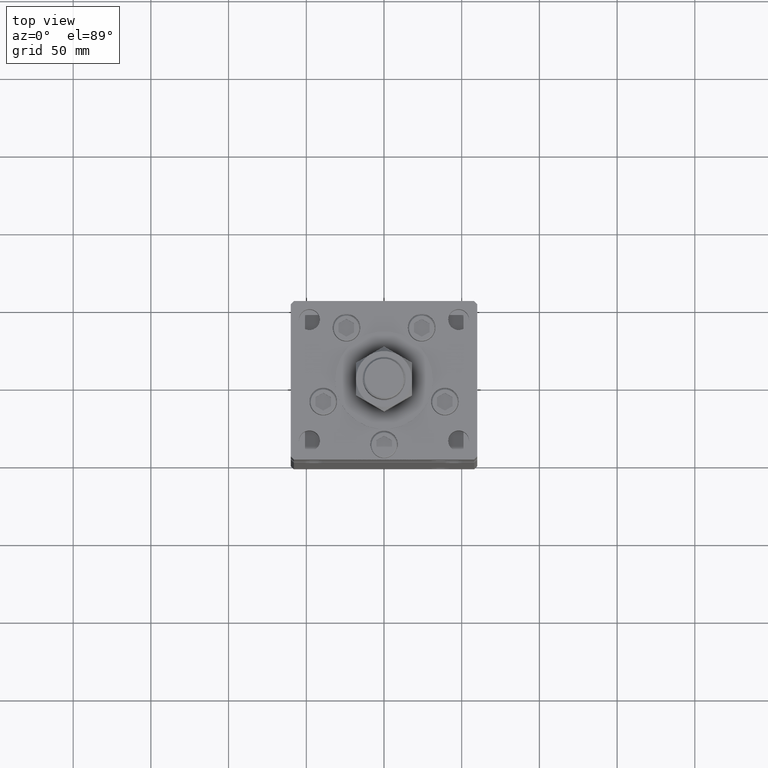
[diagram: clean part render]
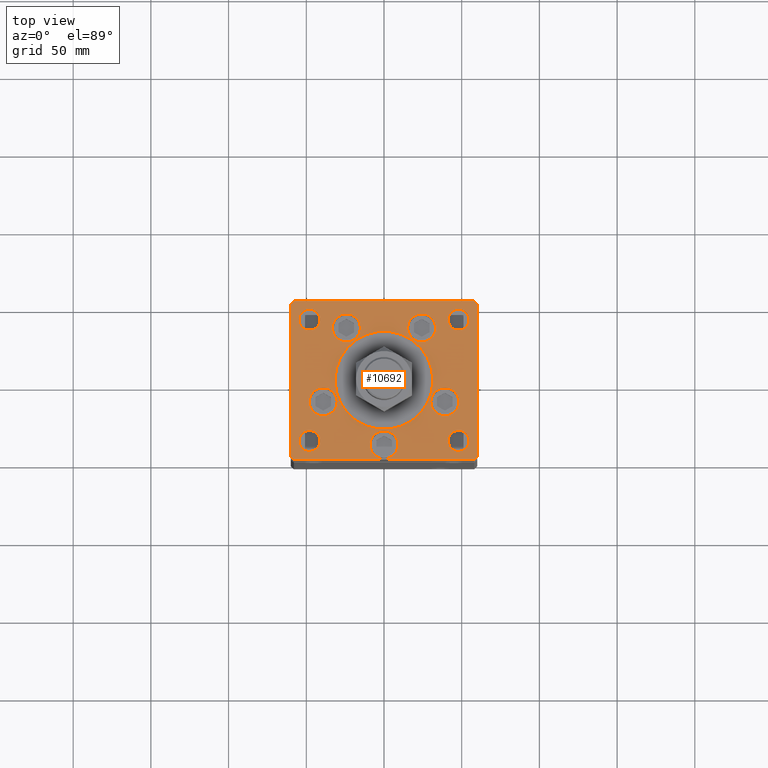
[diagram: same view with one face highlighted and labeled with its STEP entity id]
A machine part, top view. The second image highlights one B-rep face of the part: STEP entity #10692.
In plain terms, the highlighted planar face has unit normal (0, 0, 1).
Its self-contained STEP definition (entity closure, byte-faithful):
#168 = VERTEX_POINT ( 'NONE', #14459 ) ;
#234 = CIRCLE ( 'NONE', #51436, 6.749999999999999112 ) ;
#260 = LINE ( 'NONE', #42269, #46939 ) ;
#397 = EDGE_CURVE ( 'NONE', #27468, #168, #36267, .T. ) ;
#515 = AXIS2_PLACEMENT_3D ( 'NONE', #27396, #10797, #27676 ) ;
#1504 = ORIENTED_EDGE ( 'NONE', *, *, #21946, .F. ) ;
#1540 = CARTESIAN_POINT ( 'NONE',  ( 0.000000000000000000, -6.938893903907228378E-15, 0.000000000000000000 ) ) ;
#3448 = CARTESIAN_POINT ( 'NONE',  ( -9.000000000000000000, -41.50000000000000000, 0.000000000000000000 ) ) ;
#3501 = DIRECTION ( 'NONE',  ( 0.000000000000000000, 0.000000000000000000, 1.000000000000000000 ) ) ;
#3562 = CARTESIAN_POINT ( 'NONE',  ( -48.00000000000000000, 39.00000000000000711, 0.000000000000000000 ) ) ;
#3607 = CARTESIAN_POINT ( 'NONE',  ( 0.000000000000000000, -6.938893903907228378E-15, 0.000000000000000000 ) ) ;
#3973 = CARTESIAN_POINT ( 'NONE',  ( 60.00000000000001421, 49.00000000000002842, 0.000000000000000000 ) ) ;
#4388 = DIRECTION ( 'NONE',  ( 0.000000000000000000, -1.000000000000000000, 0.000000000000000000 ) ) ;
#4499 = VERTEX_POINT ( 'NONE', #46646 ) ;
#4670 = DIRECTION ( 'NONE',  ( 0.000000000000000000, 0.000000000000000000, 1.000000000000000000 ) ) ;
#4801 = VERTEX_POINT ( 'NONE', #11716 ) ;
#4926 = EDGE_CURVE ( 'NONE', #11864, #4499, #37296, .T. ) ;
#5583 = AXIS2_PLACEMENT_3D ( 'NONE', #50523, #16565, #16013 ) ;
#5655 = EDGE_LOOP ( 'NONE', ( #51501, #8653 ) ) ;
#5671 = ORIENTED_EDGE ( 'NONE', *, *, #40577, .T. ) ;
#5960 = EDGE_CURVE ( 'NONE', #13502, #4801, #30128, .T. ) ;
#6041 = EDGE_CURVE ( 'NONE', #4499, #11864, #40761, .T. ) ;
#6198 = DIRECTION ( 'NONE',  ( 0.000000000000000000, 0.000000000000000000, 1.000000000000000000 ) ) ;
#6336 = EDGE_CURVE ( 'NONE', #51343, #47669, #34570, .T. ) ;
#6450 = CARTESIAN_POINT ( 'NONE',  ( 41.25000000000000000, 39.00000000000000000, 0.000000000000000000 ) ) ;
#6668 = DIRECTION ( 'NONE',  ( 0.000000000000000000, 0.000000000000000000, 1.000000000000000000 ) ) ;
#6891 = PLANE ( 'NONE',  #41744 ) ;
#6905 = VERTEX_POINT ( 'NONE', #28674 ) ;
#6908 = EDGE_CURVE ( 'NONE', #29743, #15667, #21372, .T. ) ;
#7139 = DIRECTION ( 'NONE',  ( 0.7071067811865474617, -0.7071067811865474617, 0.000000000000000000 ) ) ;
#7162 = DIRECTION ( 'NONE',  ( 1.000000000000000000, 0.000000000000000000, 0.000000000000000000 ) ) ;
#7350 = VECTOR ( 'NONE', #7139, 1000.000000000000114 ) ;
#7973 = FACE_BOUND ( 'NONE', #53783, .T. ) ;
#8170 = CARTESIAN_POINT ( 'NONE',  ( 60.00000000000001421, 49.00000000000002842, 0.000000000000000000 ) ) ;
#8401 = CARTESIAN_POINT ( 'NONE',  ( 58.00000000000000000, 51.00000000000000711, 0.000000000000000000 ) ) ;
#8653 = ORIENTED_EDGE ( 'NONE', *, *, #34588, .F. ) ;
#8815 = CIRCLE ( 'NONE', #39689, 9.000000000000001776 ) ;
#8853 = DIRECTION ( 'NONE',  ( 0.000000000000000000, 0.000000000000000000, 1.000000000000000000 ) ) ;
#8962 = LINE ( 'NONE', #51229, #40830 ) ;
#9050 = VECTOR ( 'NONE', #4388, 1000.000000000000000 ) ;
#9291 = DIRECTION ( 'NONE',  ( 0.000000000000000000, 0.000000000000000000, 1.000000000000000000 ) ) ;
#9334 = DIRECTION ( 'NONE',  ( -1.000000000000000000, 0.000000000000000000, 0.000000000000000000 ) ) ;
#9557 = ORIENTED_EDGE ( 'NONE', *, *, #25502, .T. ) ;
#9602 = DIRECTION ( 'NONE',  ( -0.000000000000000000, -0.000000000000000000, -1.000000000000000000 ) ) ;
#9892 = EDGE_CURVE ( 'NONE', #32098, #27403, #47944, .T. ) ;
#9961 = DIRECTION ( 'NONE',  ( 1.000000000000000000, 0.000000000000000000, 0.000000000000000000 ) ) ;
#10692 = ADVANCED_FACE ( 'NONE', ( #36991, #7973, #23758, #15455, #44995, #11569, #49976, #24838, #15174, #53836, #32305 ), #6891, .T. ) ;
#10757 = DIRECTION ( 'NONE',  ( -0.000000000000000000, -0.000000000000000000, -1.000000000000000000 ) ) ;
#10797 = DIRECTION ( 'NONE',  ( 0.000000000000000000, 0.000000000000000000, 1.000000000000000000 ) ) ;
#10984 = CARTESIAN_POINT ( 'NONE',  ( 24.19288941894913592, 33.71874999999998579, 0.000000000000000000 ) ) ;
#11301 = DIRECTION ( 'NONE',  ( -0.000000000000000000, 0.000000000000000000, 1.000000000000000000 ) ) ;
#11445 = EDGE_LOOP ( 'NONE', ( #41956, #29999 ) ) ;
#11551 = CARTESIAN_POINT ( 'NONE',  ( -60.00000000000000000, 49.00000000000000000, 0.000000000000000000 ) ) ;
#11569 = FACE_BOUND ( 'NONE', #11445, .T. ) ;
#11716 = CARTESIAN_POINT ( 'NONE',  ( -15.19288941894913592, 33.71874999999998579, 0.000000000000000000 ) ) ;
#11864 = VERTEX_POINT ( 'NONE', #54350 ) ;
#12000 = ORIENTED_EDGE ( 'NONE', *, *, #43198, .F. ) ;
#12267 = ORIENTED_EDGE ( 'NONE', *, *, #43638, .T. ) ;
#12344 = VERTEX_POINT ( 'NONE', #6450 ) ;
#12523 = ORIENTED_EDGE ( 'NONE', *, *, #397, .F. ) ;
#12536 = CARTESIAN_POINT ( 'NONE',  ( 54.75000000000000000, 39.00000000000000000, 0.000000000000000000 ) ) ;
#12682 = DIRECTION ( 'NONE',  ( 1.000000000000000000, 0.000000000000000000, 0.000000000000000000 ) ) ;
#12728 = ORIENTED_EDGE ( 'NONE', *, *, #36658, .T. ) ;
#12737 = CARTESIAN_POINT ( 'NONE',  ( -48.12657522565563539, -13.83333333333332682, 0.000000000000000000 ) ) ;
#12931 = AXIS2_PLACEMENT_3D ( 'NONE', #3607, #6668, #20747 ) ;
#13019 = CARTESIAN_POINT ( 'NONE',  ( -58.00000000000000711, -51.00000000000002842, 0.000000000000000000 ) ) ;
#13053 = DIRECTION ( 'NONE',  ( 1.000000000000000000, 0.000000000000000000, 0.000000000000000000 ) ) ;
#13160 = ORIENTED_EDGE ( 'NONE', *, *, #18560, .F. ) ;
#13350 = CIRCLE ( 'NONE', #50379, 6.749999999999999112 ) ;
#13502 = VERTEX_POINT ( 'NONE', #33212 ) ;
#13516 = EDGE_CURVE ( 'NONE', #168, #27468, #15410, .T. ) ;
#13598 = CARTESIAN_POINT ( 'NONE',  ( -24.19288941894913592, 33.71874999999998579, 0.000000000000000000 ) ) ;
#13869 = DIRECTION ( 'NONE',  ( 1.000000000000000000, 0.000000000000000000, 0.000000000000000000 ) ) ;
#14314 = EDGE_LOOP ( 'NONE', ( #14795, #33128 ) ) ;
#14390 = EDGE_CURVE ( 'NONE', #18044, #43060, #46284, .T. ) ;
#14459 = CARTESIAN_POINT ( 'NONE',  ( 48.12657522565563539, -13.83333333333332860, 0.000000000000000000 ) ) ;
#14795 = ORIENTED_EDGE ( 'NONE', *, *, #35838, .T. ) ;
#15174 = FACE_BOUND ( 'NONE', #52767, .T. ) ;
#15309 = VERTEX_POINT ( 'NONE', #19722 ) ;
#15410 = CIRCLE ( 'NONE', #45405, 9.000000000000001776 ) ;
#15455 = FACE_BOUND ( 'NONE', #53640, .T. ) ;
#15610 = VERTEX_POINT ( 'NONE', #41651 ) ;
#15667 = VERTEX_POINT ( 'NONE', #25098 ) ;
#15734 = CARTESIAN_POINT ( 'NONE',  ( 0.000000000000000000, 0.000000000000000000, 0.000000000000000000 ) ) ;
#15786 = ORIENTED_EDGE ( 'NONE', *, *, #14390, .T. ) ;
#16013 = DIRECTION ( 'NONE',  ( 1.000000000000000000, 0.000000000000000000, 0.000000000000000000 ) ) ;
#16077 = EDGE_CURVE ( 'NONE', #54447, #12344, #47270, .T. ) ;
#16115 = CARTESIAN_POINT ( 'NONE',  ( -41.25000000000000000, 39.00000000000000711, 0.000000000000000000 ) ) ;
#16366 = VERTEX_POINT ( 'NONE', #37838 ) ;
#16454 = DIRECTION ( 'NONE',  ( 0.000000000000000000, 0.000000000000000000, 1.000000000000000000 ) ) ;
#16565 = DIRECTION ( 'NONE',  ( 0.000000000000000000, 0.000000000000000000, 1.000000000000000000 ) ) ;
#16732 = CARTESIAN_POINT ( 'NONE',  ( 33.19288941894913592, 33.71874999999998579, 0.000000000000000000 ) ) ;
#16835 = LINE ( 'NONE', #46658, #9050 ) ;
#17460 = DIRECTION ( 'NONE',  ( -0.000000000000000000, -0.000000000000000000, -1.000000000000000000 ) ) ;
#17531 = ORIENTED_EDGE ( 'NONE', *, *, #52860, .F. ) ;
#17721 = CARTESIAN_POINT ( 'NONE',  ( 48.00000000000000000, -39.00000000000001421, 0.000000000000000000 ) ) ;
#18044 = VERTEX_POINT ( 'NONE', #24696 ) ;
#18243 = VECTOR ( 'NONE', #46827, 1000.000000000000000 ) ;
#18560 = EDGE_CURVE ( 'NONE', #47669, #51343, #36745, .T. ) ;
#19203 = VECTOR ( 'NONE', #37981, 1000.000000000000000 ) ;
#19722 = CARTESIAN_POINT ( 'NONE',  ( -54.75000000000000000, 39.00000000000000711, 0.000000000000000000 ) ) ;
#19850 = DIRECTION ( 'NONE',  ( 1.000000000000000000, 0.000000000000000000, 0.000000000000000000 ) ) ;
#20736 = DIRECTION ( 'NONE',  ( -0.7071067811865536790, -0.7071067811865414665, 0.000000000000000000 ) ) ;
#20747 = DIRECTION ( 'NONE',  ( 1.000000000000000000, 0.000000000000000000, 0.000000000000000000 ) ) ;
#21372 = CIRCLE ( 'NONE', #30160, 9.000000000000001776 ) ;
#21651 = VERTEX_POINT ( 'NONE', #45109 ) ;
#21661 = CARTESIAN_POINT ( 'NONE',  ( 24.19288941894913592, 33.71874999999998579, 0.000000000000000000 ) ) ;
#21946 = EDGE_CURVE ( 'NONE', #27403, #32098, #37555, .T. ) ;
#22466 = ORIENTED_EDGE ( 'NONE', *, *, #4926, .F. ) ;
#22479 = AXIS2_PLACEMENT_3D ( 'NONE', #41704, #25145, #50271 ) ;
#22703 = CIRCLE ( 'NONE', #53573, 9.000000000000001776 ) ;
#23103 = AXIS2_PLACEMENT_3D ( 'NONE', #42520, #4670, #12682 ) ;
#23727 = DIRECTION ( 'NONE',  ( 0.000000000000000000, 0.000000000000000000, 1.000000000000000000 ) ) ;
#23758 = FACE_BOUND ( 'NONE', #30356, .T. ) ;
#23845 = VERTEX_POINT ( 'NONE', #3973 ) ;
#24092 = EDGE_LOOP ( 'NONE', ( #27500, #31885, #12267, #9557, #39114, #44343, #5671, #42707 ) ) ;
#24336 = AXIS2_PLACEMENT_3D ( 'NONE', #46737, #29079, #13053 ) ;
#24696 = CARTESIAN_POINT ( 'NONE',  ( 41.25000000000000000, -39.00000000000001421, 0.000000000000000000 ) ) ;
#24758 = LINE ( 'NONE', #8170, #18243 ) ;
#24838 = FACE_BOUND ( 'NONE', #5655, .T. ) ;
#24911 = VERTEX_POINT ( 'NONE', #16115 ) ;
#24990 = CARTESIAN_POINT ( 'NONE',  ( -48.00000000000000000, -39.00000000000001421, 0.000000000000000000 ) ) ;
#25031 = LINE ( 'NONE', #38537, #19203 ) ;
#25098 = CARTESIAN_POINT ( 'NONE',  ( 15.19288941894913236, 33.71874999999998579, 0.000000000000000000 ) ) ;
#25145 = DIRECTION ( 'NONE',  ( -0.000000000000000000, -0.000000000000000000, -1.000000000000000000 ) ) ;
#25502 = EDGE_CURVE ( 'NONE', #30271, #23845, #25031, .T. ) ;
#25614 = ORIENTED_EDGE ( 'NONE', *, *, #13516, .F. ) ;
#25719 = CARTESIAN_POINT ( 'NONE',  ( -39.12657522565563539, -13.83333333333332860, 0.000000000000000000 ) ) ;
#25750 = CARTESIAN_POINT ( 'NONE',  ( 39.12657522565563539, -13.83333333333332860, 0.000000000000000000 ) ) ;
#27396 = CARTESIAN_POINT ( 'NONE',  ( 0.000000000000000000, -41.50000000000000000, 0.000000000000000000 ) ) ;
#27403 = VERTEX_POINT ( 'NONE', #3448 ) ;
#27468 = VERTEX_POINT ( 'NONE', #41022 ) ;
#27500 = ORIENTED_EDGE ( 'NONE', *, *, #44134, .T. ) ;
#27550 = CIRCLE ( 'NONE', #39016, 6.749999999999999112 ) ;
#27676 = DIRECTION ( 'NONE',  ( 1.000000000000000000, 0.000000000000000000, 0.000000000000000000 ) ) ;
#28036 = CARTESIAN_POINT ( 'NONE',  ( 54.75000000000000000, -39.00000000000001421, 0.000000000000000000 ) ) ;
#28651 = CARTESIAN_POINT ( 'NONE',  ( -39.12657522565563539, -13.83333333333332860, 0.000000000000000000 ) ) ;
#28674 = CARTESIAN_POINT ( 'NONE',  ( -60.00000000000000000, -49.00000000000004263, 0.000000000000000000 ) ) ;
#29071 = DIRECTION ( 'NONE',  ( 1.000000000000000000, 0.000000000000000000, 0.000000000000000000 ) ) ;
#29079 = DIRECTION ( 'NONE',  ( 0.000000000000000000, 0.000000000000000000, 1.000000000000000000 ) ) ;
#29191 = VERTEX_POINT ( 'NONE', #11551 ) ;
#29402 = ORIENTED_EDGE ( 'NONE', *, *, #6041, .F. ) ;
#29743 = VERTEX_POINT ( 'NONE', #16732 ) ;
#29894 = DIRECTION ( 'NONE',  ( 1.000000000000000000, 0.000000000000000000, 0.000000000000000000 ) ) ;
#29999 = ORIENTED_EDGE ( 'NONE', *, *, #30547, .F. ) ;
#30128 = CIRCLE ( 'NONE', #31887, 9.000000000000000000 ) ;
#30160 = AXIS2_PLACEMENT_3D ( 'NONE', #10984, #23727, #19850 ) ;
#30239 = DIRECTION ( 'NONE',  ( 0.7071067811865474617, 0.7071067811865474617, 0.000000000000000000 ) ) ;
#30271 = VERTEX_POINT ( 'NONE', #44507 ) ;
#30356 = EDGE_LOOP ( 'NONE', ( #41593, #12000 ) ) ;
#30547 = EDGE_CURVE ( 'NONE', #31350, #43712, #8815, .T. ) ;
#30887 = VERTEX_POINT ( 'NONE', #51798 ) ;
#31350 = VERTEX_POINT ( 'NONE', #12737 ) ;
#31473 = EDGE_CURVE ( 'NONE', #21651, #15610, #51668, .T. ) ;
#31885 = ORIENTED_EDGE ( 'NONE', *, *, #31473, .T. ) ;
#31887 = AXIS2_PLACEMENT_3D ( 'NONE', #35114, #51686, #9961 ) ;
#32037 = AXIS2_PLACEMENT_3D ( 'NONE', #21661, #51197, #47048 ) ;
#32042 = DIRECTION ( 'NONE',  ( -1.000000000000000000, 0.000000000000000000, 0.000000000000000000 ) ) ;
#32098 = VERTEX_POINT ( 'NONE', #53644 ) ;
#32305 = FACE_BOUND ( 'NONE', #44191, .T. ) ;
#32763 = AXIS2_PLACEMENT_3D ( 'NONE', #46189, #41772, #29894 ) ;
#32881 = AXIS2_PLACEMENT_3D ( 'NONE', #24990, #33528, #37404 ) ;
#33128 = ORIENTED_EDGE ( 'NONE', *, *, #42717, .T. ) ;
#33212 = CARTESIAN_POINT ( 'NONE',  ( -33.19288941894913592, 33.71874999999998579, 0.000000000000000000 ) ) ;
#33528 = DIRECTION ( 'NONE',  ( 0.000000000000000000, 0.000000000000000000, 1.000000000000000000 ) ) ;
#33630 = CARTESIAN_POINT ( 'NONE',  ( -60.00000000000000000, -49.00000000000004263, 0.000000000000000000 ) ) ;
#33769 = CIRCLE ( 'NONE', #32037, 9.000000000000001776 ) ;
#34564 = AXIS2_PLACEMENT_3D ( 'NONE', #3562, #10757, #32042 ) ;
#34570 = CIRCLE ( 'NONE', #44258, 31.50000000000000000 ) ;
#34588 = EDGE_CURVE ( 'NONE', #12344, #54447, #13350, .T. ) ;
#35114 = CARTESIAN_POINT ( 'NONE',  ( -24.19288941894913592, 33.71874999999998579, 0.000000000000000000 ) ) ;
#35116 = EDGE_LOOP ( 'NONE', ( #47392, #1504 ) ) ;
#35838 = EDGE_CURVE ( 'NONE', #24911, #15309, #52189, .T. ) ;
#36267 = CIRCLE ( 'NONE', #32763, 9.000000000000001776 ) ;
#36658 = EDGE_CURVE ( 'NONE', #43060, #18044, #27550, .T. ) ;
#36665 = DIRECTION ( 'NONE',  ( 1.000000000000000000, 0.000000000000000000, 0.000000000000000000 ) ) ;
#36745 = CIRCLE ( 'NONE', #12931, 31.50000000000000000 ) ;
#36859 = CARTESIAN_POINT ( 'NONE',  ( 48.00000000000000000, 39.00000000000000000, 0.000000000000000000 ) ) ;
#36991 = FACE_BOUND ( 'NONE', #49771, .T. ) ;
#37296 = CIRCLE ( 'NONE', #32881, 6.749999999999999112 ) ;
#37404 = DIRECTION ( 'NONE',  ( 1.000000000000000000, 0.000000000000000000, 0.000000000000000000 ) ) ;
#37555 = CIRCLE ( 'NONE', #515, 9.000000000000000000 ) ;
#37838 = CARTESIAN_POINT ( 'NONE',  ( 58.00000000000000000, 51.00000000000000711, 0.000000000000000000 ) ) ;
#37981 = DIRECTION ( 'NONE',  ( 0.000000000000000000, 1.000000000000000000, 0.000000000000000000 ) ) ;
#38419 = DIRECTION ( 'NONE',  ( 1.000000000000000000, 9.570888143320313916E-16, 0.000000000000000000 ) ) ;
#38537 = CARTESIAN_POINT ( 'NONE',  ( 60.00000000000001421, -48.99999999999992895, 0.000000000000000000 ) ) ;
#38657 = EDGE_CURVE ( 'NONE', #29191, #6905, #16835, .T. ) ;
#38862 = CARTESIAN_POINT ( 'NONE',  ( 31.50000000000000000, -3.081256486593065689E-15, 0.000000000000000000 ) ) ;
#39016 = AXIS2_PLACEMENT_3D ( 'NONE', #17721, #17460, #46995 ) ;
#39114 = ORIENTED_EDGE ( 'NONE', *, *, #53623, .T. ) ;
#39689 = AXIS2_PLACEMENT_3D ( 'NONE', #25719, #8853, #46969 ) ;
#40577 = EDGE_CURVE ( 'NONE', #30887, #29191, #260, .T. ) ;
#40761 = CIRCLE ( 'NONE', #23103, 6.749999999999999112 ) ;
#40830 = VECTOR ( 'NONE', #30239, 1000.000000000000114 ) ;
#41022 = CARTESIAN_POINT ( 'NONE',  ( 30.12657522565563539, -13.83333333333332682, 0.000000000000000000 ) ) ;
#41593 = ORIENTED_EDGE ( 'NONE', *, *, #6908, .F. ) ;
#41651 = CARTESIAN_POINT ( 'NONE',  ( 58.00000000000001421, -50.99999999999992184, 0.000000000000000000 ) ) ;
#41704 = CARTESIAN_POINT ( 'NONE',  ( 48.00000000000000000, -39.00000000000001421, 0.000000000000000000 ) ) ;
#41744 = AXIS2_PLACEMENT_3D ( 'NONE', #15734, #11301, #7162 ) ;
#41772 = DIRECTION ( 'NONE',  ( 0.000000000000000000, 0.000000000000000000, 1.000000000000000000 ) ) ;
#41921 = LINE ( 'NONE', #33630, #7350 ) ;
#41956 = ORIENTED_EDGE ( 'NONE', *, *, #54177, .F. ) ;
#42012 = CARTESIAN_POINT ( 'NONE',  ( -31.50000000000000000, -6.938893903907228378E-15, 0.000000000000000000 ) ) ;
#42269 = CARTESIAN_POINT ( 'NONE',  ( -57.99999999999998579, 50.99999999999997868, 0.000000000000000000 ) ) ;
#42314 = DIRECTION ( 'NONE',  ( 0.000000000000000000, 0.000000000000000000, 1.000000000000000000 ) ) ;
#42375 = DIRECTION ( 'NONE',  ( -1.000000000000000000, -2.392722035830078972E-16, 0.000000000000000000 ) ) ;
#42520 = CARTESIAN_POINT ( 'NONE',  ( -48.00000000000000000, -39.00000000000001421, 0.000000000000000000 ) ) ;
#42707 = ORIENTED_EDGE ( 'NONE', *, *, #38657, .T. ) ;
#42717 = EDGE_CURVE ( 'NONE', #15309, #24911, #234, .T. ) ;
#43060 = VERTEX_POINT ( 'NONE', #28036 ) ;
#43198 = EDGE_CURVE ( 'NONE', #15667, #29743, #33769, .T. ) ;
#43307 = CARTESIAN_POINT ( 'NONE',  ( -48.00000000000000000, 39.00000000000000711, 0.000000000000000000 ) ) ;
#43546 = VECTOR ( 'NONE', #42375, 1000.000000000000000 ) ;
#43638 = EDGE_CURVE ( 'NONE', #15610, #30271, #8962, .T. ) ;
#43712 = VERTEX_POINT ( 'NONE', #44562 ) ;
#44134 = EDGE_CURVE ( 'NONE', #6905, #21651, #41921, .T. ) ;
#44191 = EDGE_LOOP ( 'NONE', ( #12728, #15786 ) ) ;
#44258 = AXIS2_PLACEMENT_3D ( 'NONE', #1540, #9291, #51281 ) ;
#44343 = ORIENTED_EDGE ( 'NONE', *, *, #45862, .T. ) ;
#44507 = CARTESIAN_POINT ( 'NONE',  ( 60.00000000000001421, -48.99999999999992895, 0.000000000000000000 ) ) ;
#44562 = CARTESIAN_POINT ( 'NONE',  ( -30.12657522565563539, -13.83333333333332860, 0.000000000000000000 ) ) ;
#44995 = FACE_BOUND ( 'NONE', #35116, .T. ) ;
#45109 = CARTESIAN_POINT ( 'NONE',  ( -58.00000000000000711, -51.00000000000002842, 0.000000000000000000 ) ) ;
#45405 = AXIS2_PLACEMENT_3D ( 'NONE', #25750, #42314, #29071 ) ;
#45862 = EDGE_CURVE ( 'NONE', #16366, #30887, #46787, .T. ) ;
#46189 = CARTESIAN_POINT ( 'NONE',  ( 39.12657522565563539, -13.83333333333332860, 0.000000000000000000 ) ) ;
#46284 = CIRCLE ( 'NONE', #22479, 6.749999999999999112 ) ;
#46646 = CARTESIAN_POINT ( 'NONE',  ( -41.25000000000000000, -39.00000000000001421, 0.000000000000000000 ) ) ;
#46658 = CARTESIAN_POINT ( 'NONE',  ( -60.00000000000000000, 49.00000000000000000, 0.000000000000000000 ) ) ;
#46737 = CARTESIAN_POINT ( 'NONE',  ( 48.00000000000000000, 39.00000000000000000, 0.000000000000000000 ) ) ;
#46787 = LINE ( 'NONE', #8401, #43546 ) ;
#46827 = DIRECTION ( 'NONE',  ( -0.7071067811865536790, 0.7071067811865414665, 0.000000000000000000 ) ) ;
#46939 = VECTOR ( 'NONE', #20736, 1000.000000000000000 ) ;
#46969 = DIRECTION ( 'NONE',  ( 1.000000000000000000, 0.000000000000000000, 0.000000000000000000 ) ) ;
#46995 = DIRECTION ( 'NONE',  ( -1.000000000000000000, 0.000000000000000000, 0.000000000000000000 ) ) ;
#47048 = DIRECTION ( 'NONE',  ( 1.000000000000000000, 0.000000000000000000, 0.000000000000000000 ) ) ;
#47270 = CIRCLE ( 'NONE', #24336, 6.749999999999999112 ) ;
#47392 = ORIENTED_EDGE ( 'NONE', *, *, #9892, .F. ) ;
#47669 = VERTEX_POINT ( 'NONE', #38862 ) ;
#47944 = CIRCLE ( 'NONE', #5583, 9.000000000000000000 ) ;
#49771 = EDGE_LOOP ( 'NONE', ( #52411, #13160 ) ) ;
#49976 = FACE_BOUND ( 'NONE', #14314, .T. ) ;
#50271 = DIRECTION ( 'NONE',  ( -1.000000000000000000, 0.000000000000000000, 0.000000000000000000 ) ) ;
#50379 = AXIS2_PLACEMENT_3D ( 'NONE', #36859, #6198, #53699 ) ;
#50523 = CARTESIAN_POINT ( 'NONE',  ( 0.000000000000000000, -41.50000000000000000, 0.000000000000000000 ) ) ;
#51197 = DIRECTION ( 'NONE',  ( 0.000000000000000000, 0.000000000000000000, 1.000000000000000000 ) ) ;
#51229 = CARTESIAN_POINT ( 'NONE',  ( 58.00000000000001421, -50.99999999999992184, 0.000000000000000000 ) ) ;
#51281 = DIRECTION ( 'NONE',  ( 1.000000000000000000, 0.000000000000000000, 0.000000000000000000 ) ) ;
#51343 = VERTEX_POINT ( 'NONE', #42012 ) ;
#51436 = AXIS2_PLACEMENT_3D ( 'NONE', #43307, #9602, #9334 ) ;
#51501 = ORIENTED_EDGE ( 'NONE', *, *, #16077, .F. ) ;
#51668 = LINE ( 'NONE', #13019, #52073 ) ;
#51686 = DIRECTION ( 'NONE',  ( 0.000000000000000000, 0.000000000000000000, 1.000000000000000000 ) ) ;
#51798 = CARTESIAN_POINT ( 'NONE',  ( -57.99999999999998579, 50.99999999999997868, 0.000000000000000000 ) ) ;
#52073 = VECTOR ( 'NONE', #38419, 1000.000000000000000 ) ;
#52189 = CIRCLE ( 'NONE', #34564, 6.749999999999999112 ) ;
#52411 = ORIENTED_EDGE ( 'NONE', *, *, #6336, .F. ) ;
#52767 = EDGE_LOOP ( 'NONE', ( #29402, #22466 ) ) ;
#52860 = EDGE_CURVE ( 'NONE', #4801, #13502, #53521, .T. ) ;
#53521 = CIRCLE ( 'NONE', #54393, 9.000000000000000000 ) ;
#53573 = AXIS2_PLACEMENT_3D ( 'NONE', #28651, #3501, #36665 ) ;
#53623 = EDGE_CURVE ( 'NONE', #23845, #16366, #24758, .T. ) ;
#53640 = EDGE_LOOP ( 'NONE', ( #25614, #12523 ) ) ;
#53644 = CARTESIAN_POINT ( 'NONE',  ( 9.000000000000000000, -41.50000000000000000, 0.000000000000000000 ) ) ;
#53651 = ORIENTED_EDGE ( 'NONE', *, *, #5960, .F. ) ;
#53699 = DIRECTION ( 'NONE',  ( 1.000000000000000000, 0.000000000000000000, 0.000000000000000000 ) ) ;
#53783 = EDGE_LOOP ( 'NONE', ( #17531, #53651 ) ) ;
#53836 = FACE_OUTER_BOUND ( 'NONE', #24092, .T. ) ;
#54177 = EDGE_CURVE ( 'NONE', #43712, #31350, #22703, .T. ) ;
#54350 = CARTESIAN_POINT ( 'NONE',  ( -54.75000000000000000, -39.00000000000001421, 0.000000000000000000 ) ) ;
#54393 = AXIS2_PLACEMENT_3D ( 'NONE', #13598, #16454, #13869 ) ;
#54447 = VERTEX_POINT ( 'NONE', #12536 ) ;